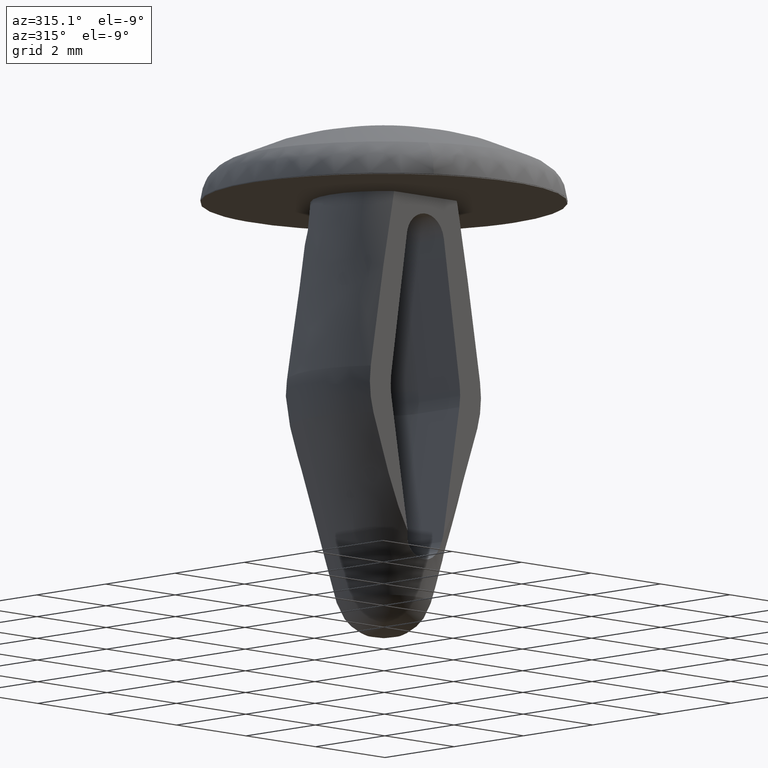
[diagram: clean part render]
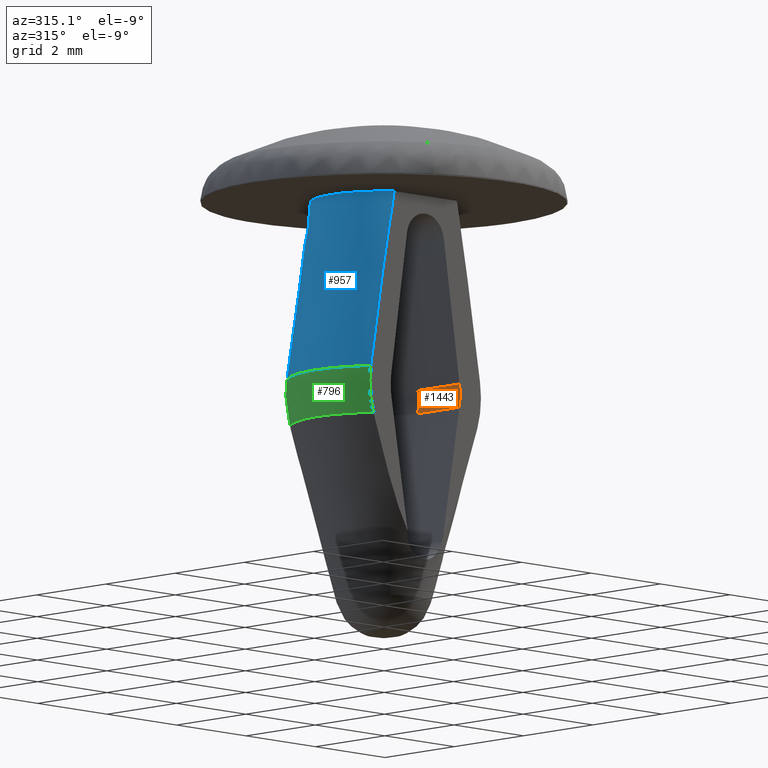
[diagram: same view with three faces highlighted in distinct colors, each labeled with its STEP entity id]
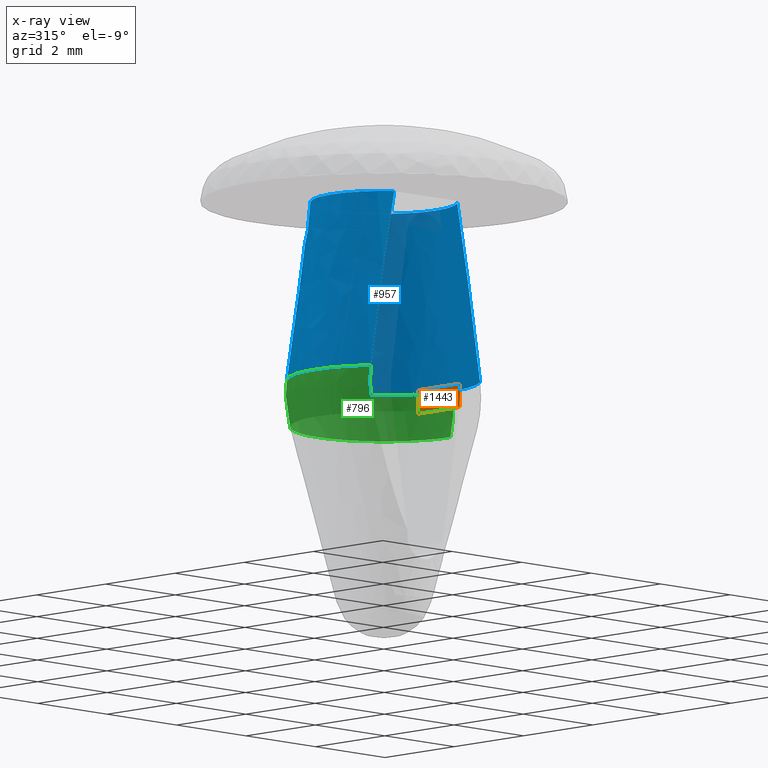
[diagram: x-ray of the same camera — body ghosted, the three highlighted faces saturated]
A machine part, auxiliary view with three faces highlighted in distinct colors.
The next image is the same camera in x-ray (body ghosted, the three faces saturated) — at least one of them is partly hidden behind the body in this view.
Their STEP definitions:

[orange] entity #1443 — the highlighted face is a freeform B-spline surface patch.
#1060=CARTESIAN_POINT('',(0.982791748525544,-1.199999999999986,-3.773420354298035));
#1061=VERTEX_POINT('',#1060);
#1067=CARTESIAN_POINT('',(0.978409000000000,-1.199999999999980,-4.253601000000000));
#1068=VERTEX_POINT('',#1067);
#1069=CARTESIAN_POINT('',(0.978409000000000,-1.199999999999980,-4.253601000000000));
#1070=CARTESIAN_POINT('',(1.019532730143233,-1.199999999999983,-4.013865942273591));
#1071=CARTESIAN_POINT('',(0.982791748525544,-1.199999999999986,-3.773420354298035));
#1079=(BOUNDED_CURVE()B_SPLINE_CURVE(2,(#1069,#1070,#1071),.UNSPECIFIED.,.F.,.U.)CURVE()GEOMETRIC_REPRESENTATION_ITEM()QUASI_UNIFORM_CURVE()RATIONAL_B_SPLINE_CURVE((1.0,0.987106218336658,1.0))REPRESENTATION_ITEM(''));
#1080=EDGE_CURVE('',#1068,#1061,#1079,.T.);
#1179=CARTESIAN_POINT('',(0.978407283496110,-2.168404E-016,-4.253597918180820));
#1180=VERTEX_POINT('',#1179);
#1256=CARTESIAN_POINT('',(0.982788363668221,0.0,-3.773422000000000));
#1257=VERTEX_POINT('',#1256);
#1287=CARTESIAN_POINT('',(0.978407283496112,0.0,-4.253597918180820));
#1288=CARTESIAN_POINT('',(1.019529730938965,0.0,-4.013865170172412));
#1289=CARTESIAN_POINT('',(0.982788363668221,0.0,-3.773422000000000));
#1297=(BOUNDED_CURVE()B_SPLINE_CURVE(2,(#1287,#1288,#1289),.UNSPECIFIED.,.F.,.U.)CURVE()GEOMETRIC_REPRESENTATION_ITEM()QUASI_UNIFORM_CURVE()RATIONAL_B_SPLINE_CURVE((1.0,0.987106424436386,1.0))REPRESENTATION_ITEM(''));
#1298=EDGE_CURVE('',#1180,#1257,#1297,.T.);
#1404=CARTESIAN_POINT('',(0.982788363668221,0.0,-3.773422000000000));
#1405=CARTESIAN_POINT('',(0.982791748525544,-1.199999999999986,-3.773420354298035));
#1406=QUASI_UNIFORM_CURVE('',1,(#1404,#1405),.UNSPECIFIED.,.F.,.U.);
#1407=EDGE_CURVE('',#1257,#1061,#1406,.T.);
#1419=CARTESIAN_POINT('',(0.978985775320890,0.030000000000000,-3.749797928868557));
#1420=CARTESIAN_POINT('',(0.978985775320890,-1.230749999999986,-3.749797928868557));
#1421=CARTESIAN_POINT('',(1.023672292751602,0.030000000000000,-4.013947315521438));
#1422=CARTESIAN_POINT('',(1.023672292751602,-1.230749999999986,-4.013947315521438));
#1423=CARTESIAN_POINT('',(0.974157753544693,0.030000000000000,-4.277234409235327));
#1424=CARTESIAN_POINT('',(0.974157753544693,-1.230749999999985,-4.277234409235327));
#1432=(BOUNDED_SURFACE()B_SPLINE_SURFACE(1,2,((#1419,#1421,#1423),(#1420,#1422,#1424)),.UNSPECIFIED.,.F.,.F.,.U.)B_SPLINE_SURFACE_WITH_KNOTS((2,2),(3,3),(0.0,1.0),(0.046906087555364,0.855996299527213),.UNSPECIFIED.)GEOMETRIC_REPRESENTATION_ITEM()RATIONAL_B_SPLINE_SURFACE(((0.997880583020988,0.980501107016413,0.994156177136356),(0.997880583020988,0.980501107016413,0.994156177136356)))REPRESENTATION_ITEM('')SURFACE());
#1433=CARTESIAN_POINT('',(0.978407283496110,-2.168404E-016,-4.253597918180820));
#1434=CARTESIAN_POINT('',(0.978409000000000,-1.199999999999980,-4.253601000000000));
#1435=QUASI_UNIFORM_CURVE('',1,(#1433,#1434),.UNSPECIFIED.,.F.,.U.);
#1436=EDGE_CURVE('',#1180,#1068,#1435,.T.);
#1437=ORIENTED_EDGE('',*,*,#1436,.T.);
#1438=ORIENTED_EDGE('',*,*,#1080,.T.);
#1439=ORIENTED_EDGE('',*,*,#1407,.F.);
#1440=ORIENTED_EDGE('',*,*,#1298,.F.);
#1441=EDGE_LOOP('',(#1437,#1438,#1439,#1440));
#1442=FACE_OUTER_BOUND('',#1441,.T.);
#1443=ADVANCED_FACE('',(#1442),#1432,.F.);

[blue] entity #957 — the highlighted face is a freeform B-spline surface patch.
#742=CARTESIAN_POINT('',(-1.573733587823400,-1.199999999999986,-3.677024810886955));
#743=VERTEX_POINT('',#742);
#744=CARTESIAN_POINT('',(1.979049621783978,9.594023E-011,-3.677024810964194));
#745=VERTEX_POINT('',#744);
#746=CARTESIAN_POINT('',(-1.573733587823400,-1.199999999999985,-3.677024810886955));
#747=CARTESIAN_POINT('',(-2.671100495634820,0.239135967490644,-3.677024810886955));
#748=CARTESIAN_POINT('',(-1.335550247817410,1.460459838885798,-3.677024810886955));
#749=CARTESIAN_POINT('',(4.336809E-016,2.681783710280953,-3.677024810886955));
#750=CARTESIAN_POINT('',(1.335550247817410,1.460459838885797,-3.677024810886955));
#751=CARTESIAN_POINT('',(1.979049621689369,0.871997407148744,-3.677024810886955));
#752=CARTESIAN_POINT('',(1.979049621783979,9.594023E-011,-3.677024810964194));
#760=(BOUNDED_CURVE()B_SPLINE_CURVE(2,(#746,#747,#748,#749,#750,#751,#752),.UNSPECIFIED.,.F.,.U.)B_SPLINE_CURVE_WITH_KNOTS((3,2,2,3),(0.0,0.333333333333333,0.666666666666667,0.852508629391287),.UNSPECIFIED.)CURVE()GEOMETRIC_REPRESENTATION_ITEM()RATIONAL_B_SPLINE_CURVE((1.0,0.737960192012123,1.0,0.737960192012123,1.0,0.853906023314651,0.870714394846003))REPRESENTATION_ITEM(''));
#761=EDGE_CURVE('',#743,#745,#760,.T.);
#820=CARTESIAN_POINT('',(1.573733587823400,-1.199999999999986,-3.677024810886955));
#821=VERTEX_POINT('',#820);
#822=CARTESIAN_POINT('',(1.979049621783979,9.594023E-011,-3.677024810964194));
#823=CARTESIAN_POINT('',(1.979049621838726,-0.668450452988905,-3.677024810886954));
#824=CARTESIAN_POINT('',(1.573733587823400,-1.199999999999986,-3.677024810886955));
#832=(BOUNDED_CURVE()B_SPLINE_CURVE(2,(#822,#823,#824),.UNSPECIFIED.,.F.,.U.)B_SPLINE_CURVE_WITH_KNOTS((3,3),(0.852508629391287,1.0),.UNSPECIFIED.)CURVE()GEOMETRIC_REPRESENTATION_ITEM()RATIONAL_B_SPLINE_CURVE((0.870714394846003,0.884054168697472,1.0))REPRESENTATION_ITEM(''));
#833=EDGE_CURVE('',#745,#821,#832,.T.);
#886=CARTESIAN_POINT('',(0.857189548919887,-1.216322648776343,0.091925620274105));
#887=CARTESIAN_POINT('',(1.147120936528419,-1.627725370360819,-3.771248571745152));
#888=CARTESIAN_POINT('',(2.231992210836445,-0.247446113584232,0.091925620274105));
#889=CARTESIAN_POINT('',(2.986929785185858,-0.331141015324710,-3.771248571745151));
#890=CARTESIAN_POINT('',(1.102791236696518,0.999032630582777,0.091925620274105));
#891=CARTESIAN_POINT('',(1.475793676939561,1.336940293148245,-3.771248571745152));
#892=CARTESIAN_POINT('',(-0.026409737443410,2.245511374749787,0.091925620274105));
#893=CARTESIAN_POINT('',(-0.035342431306737,3.005021601621200,-3.771248571745151));
#894=CARTESIAN_POINT('',(-1.125982436778197,0.972819747317463,0.091925620274105));
#895=CARTESIAN_POINT('',(-1.506828949348604,1.301861298965096,-3.771248571745152));
#896=CARTESIAN_POINT('',(-2.225555136112985,-0.299871880114860,0.091925620274105));
#897=CARTESIAN_POINT('',(-2.978315467390471,-0.401299003691009,-3.771248571745151));
#898=CARTESIAN_POINT('',(-0.828345756184745,-1.236146438297058,0.091925620274105));
#899=CARTESIAN_POINT('',(-1.108521167577597,-1.654254256567142,-3.771248571745152));
#907=(BOUNDED_SURFACE()B_SPLINE_SURFACE(1,2,((#886,#888,#890,#892,#894,#896,#898),(#887,#889,#891,#893,#895,#897,#899)),.UNSPECIFIED.,.F.,.F.,.U.)B_SPLINE_SURFACE_WITH_KNOTS((2,2),(3,2,2,3),(0.0,3.895821767834273),(0.0,3.588106502810695,7.176213005621390,10.764319508432081),.UNSPECIFIED.)GEOMETRIC_REPRESENTATION_ITEM()RATIONAL_B_SPLINE_SURFACE(((1.0,0.662620048215738,1.0,0.662620048215738,1.0,0.662620048215738,1.0),(1.0,0.662620048215738,1.0,0.662620048215738,1.0,0.662620048215738,1.0)))REPRESENTATION_ITEM('')SURFACE());
#908=CARTESIAN_POINT('',(0.900000000000019,-1.199999999999986,-7.347638E-017));
#909=VERTEX_POINT('',#908);
#910=CARTESIAN_POINT('',(1.573733587823400,-1.199999999999986,-3.677024810886955));
#911=CARTESIAN_POINT('',(1.489005990655326,-1.199999999999986,-3.159884669700296));
#912=CARTESIAN_POINT('',(1.401918301946416,-1.199999999999986,-2.643050464905263));
#913=CARTESIAN_POINT('',(1.219641813153173,-1.199999999999986,-1.611110511078921));
#914=CARTESIAN_POINT('',(1.124674992686648,-1.199999999999986,-1.095953280023142));
#915=CARTESIAN_POINT('',(0.982393489470487,-1.199999999999986,-0.388063193322614));
#916=CARTESIAN_POINT('',(0.942103891702534,-1.199999999999986,-0.193839023776181));
#917=CARTESIAN_POINT('',(0.900000000000019,-1.199999999999986,-7.347638E-017));
#918=B_SPLINE_CURVE_WITH_KNOTS('',3,(#910,#911,#912,#913,#914,#915,#916,#917),.UNSPECIFIED.,.F.,.U.,(4,2,2,4),(0.0,0.124999999999999,0.249999999999998,0.297349734715839),.UNSPECIFIED.);
#919=EDGE_CURVE('',#821,#909,#918,.T.);
#920=ORIENTED_EDGE('',*,*,#919,.F.);
#921=ORIENTED_EDGE('',*,*,#833,.F.);
#922=ORIENTED_EDGE('',*,*,#761,.F.);
#923=CARTESIAN_POINT('',(-0.900000000000019,-1.199999999999986,-7.347638E-017));
#924=VERTEX_POINT('',#923);
#925=CARTESIAN_POINT('',(-0.900000000000019,-1.199999999999986,-7.347638E-017));
#926=CARTESIAN_POINT('',(-0.942913641514915,-1.199999999999986,-0.197568220935154));
#927=CARTESIAN_POINT('',(-0.983957731683787,-1.199999999999986,-0.395590808369330));
#928=CARTESIAN_POINT('',(-1.126513073123144,-1.199999999999986,-1.105762847215027));
#929=CARTESIAN_POINT('',(-1.221117563328925,-1.199999999999985,-1.619266975762834));
#930=CARTESIAN_POINT('',(-1.402631399472268,-1.199999999999986,-2.647282073238782));
#931=CARTESIAN_POINT('',(-1.489346247982040,-1.199999999999986,-3.161960336343341));
#932=CARTESIAN_POINT('',(-1.573733587823400,-1.199999999999986,-3.677024810886955));
#933=B_SPLINE_CURVE_WITH_KNOTS('',3,(#925,#926,#927,#928,#929,#930,#931,#932),.UNSPECIFIED.,.F.,.U.,(4,2,2,4),(0.701567181361650,0.749999999999997,0.874999999999999,1.0),.UNSPECIFIED.);
#934=EDGE_CURVE('',#924,#743,#933,.T.);
#935=ORIENTED_EDGE('',*,*,#934,.F.);
#936=CARTESIAN_POINT('',(-0.900000000000019,-1.199999999999986,0.0));
#937=CARTESIAN_POINT('',(-1.764911064067354,-0.551316701949464,0.0));
#938=CARTESIAN_POINT('',(-1.423024947075767,0.474341649025268,0.0));
#939=CARTESIAN_POINT('',(-1.081138830084181,1.500000000000001,0.0));
#940=CARTESIAN_POINT('',(0.0,1.500000000000000,0.0));
#941=CARTESIAN_POINT('',(1.081138830084179,1.500000000000001,0.0));
#942=CARTESIAN_POINT('',(1.423024947075766,0.474341649025270,0.0));
#943=CARTESIAN_POINT('',(1.764911064067355,-0.551316701949462,0.0));
#944=CARTESIAN_POINT('',(0.900000000000020,-1.199999999999985,0.0));
#952=(BOUNDED_CURVE()B_SPLINE_CURVE(2,(#936,#937,#938,#939,#940,#941,#942,#943,#944),.UNSPECIFIED.,.F.,.U.)B_SPLINE_CURVE_WITH_KNOTS((3,2,2,2,3),(0.0,0.250000000000000,0.500000000000000,0.750000000000000,1.0),.UNSPECIFIED.)CURVE()GEOMETRIC_REPRESENTATION_ITEM()RATIONAL_B_SPLINE_CURVE((1.0,0.811242185175563,1.0,0.811242185175563,1.0,0.811242185175563,1.0,0.811242185175563,1.0))REPRESENTATION_ITEM(''));
#953=EDGE_CURVE('',#924,#909,#952,.T.);
#954=ORIENTED_EDGE('',*,*,#953,.T.);
#955=EDGE_LOOP('',(#920,#921,#922,#935,#954));
#956=FACE_OUTER_BOUND('',#955,.T.);
#957=ADVANCED_FACE('',(#956),#907,.T.);

[green] entity #796 — the highlighted face is a freeform B-spline surface patch.
#286=CARTESIAN_POINT('',(-1.496163553573590,-1.199999999999986,-4.635257124094320));
#287=VERTEX_POINT('',#286);
#288=CARTESIAN_POINT('',(-1.853130891334652,0.494377845045473,-4.635258875572371));
#289=VERTEX_POINT('',#288);
#290=CARTESIAN_POINT('',(-1.496163553573590,-1.199999999999986,-4.635257124094320));
#291=CARTESIAN_POINT('',(-2.103232487399047,-0.443104465872611,-4.635258116353674));
#292=CARTESIAN_POINT('',(-1.853130891334651,0.494377845045473,-4.635258875572371));
#300=(BOUNDED_CURVE()B_SPLINE_CURVE(2,(#290,#291,#292),.UNSPECIFIED.,.F.,.U.)B_SPLINE_CURVE_WITH_KNOTS((3,3),(0.0,0.206598656610425),.UNSPECIFIED.)CURVE()GEOMETRIC_REPRESENTATION_ITEM()RATIONAL_B_SPLINE_CURVE((1.0,0.834154077139532,0.873889423482797))REPRESENTATION_ITEM(''));
#301=EDGE_CURVE('',#287,#289,#300,.T.);
#359=CARTESIAN_POINT('',(-0.192220907132986,1.908285629261297,-4.635259230446605));
#360=VERTEX_POINT('',#359);
#366=CARTESIAN_POINT('',(1.917943262344400,-0.000000111524127,-4.635256153124296));
#367=VERTEX_POINT('',#366);
#368=CARTESIAN_POINT('',(-0.192220907132986,1.908285629261297,-4.635259230446605));
#369=CARTESIAN_POINT('',(0.670655794026616,1.995203075432844,-4.635258449610775));
#370=CARTESIAN_POINT('',(1.305840773213348,1.404736673732055,-4.635257514462345));
#371=CARTESIAN_POINT('',(1.917943342818645,0.835727623471763,-4.635256613296896));
#372=CARTESIAN_POINT('',(1.917943262344400,-0.000000111524127,-4.635256153124296));
#380=(BOUNDED_CURVE()B_SPLINE_CURVE(2,(#368,#369,#370,#371,#372),.UNSPECIFIED.,.F.,.U.)B_SPLINE_CURVE_WITH_KNOTS((3,2,3),(0.478695209469498,0.666666666666667,0.848806047577946),.UNSPECIFIED.)CURVE()GEOMETRIC_REPRESENTATION_ITEM()RATIONAL_B_SPLINE_CURVE((0.868395425824294,0.849106957897236,1.0,0.853788624708119,0.867362345683337))REPRESENTATION_ITEM(''));
#381=EDGE_CURVE('',#360,#367,#380,.T.);
#510=CARTESIAN_POINT('',(-1.853130891334651,0.494377845045473,-4.635258875572371));
#511=CARTESIAN_POINT('',(-1.710660088919092,1.028416951093763,-4.635258979820431));
#512=CARTESIAN_POINT('',(-1.305840153261273,1.404736627963445,-4.635259071984208));
#513=CARTESIAN_POINT('',(-0.833660527748491,1.843673716890839,-4.635259179483501));
#514=CARTESIAN_POINT('',(-0.192220907132986,1.908285629261297,-4.635259230446605));
#522=(BOUNDED_CURVE()B_SPLINE_CURVE(2,(#510,#511,#512,#513,#514),.UNSPECIFIED.,.F.,.U.)B_SPLINE_CURVE_WITH_KNOTS((3,2,3),(0.206598656610425,0.333333333333333,0.478695209469498),.UNSPECIFIED.)CURVE()GEOMETRIC_REPRESENTATION_ITEM()RATIONAL_B_SPLINE_CURVE((0.873889423482797,0.898264442933105,1.0,0.883311562175401,0.868395425824294))REPRESENTATION_ITEM(''));
#523=EDGE_CURVE('',#289,#360,#522,.T.);
#699=CARTESIAN_POINT('',(-1.217595698680286,-1.464649086310717,-4.683814344699183));
#700=CARTESIAN_POINT('',(-1.278542737497976,-1.537962440500802,-4.348553266800303));
#701=CARTESIAN_POINT('',(-1.278542737497976,-1.537962440500801,-4.0));
#702=CARTESIAN_POINT('',(-1.278542737497976,-1.537962440500802,-3.813320396815827));
#703=CARTESIAN_POINT('',(-1.260819048134568,-1.516642567688911,-3.628711057659776));
#704=CARTESIAN_POINT('',(-1.904661710508076,-0.893475671101647,-4.683814344699183));
#705=CARTESIAN_POINT('',(-2.0,-0.938198805774605,-4.348553266800303));
#706=CARTESIAN_POINT('',(-2.0,-0.938198805774605,-4.0));
#707=CARTESIAN_POINT('',(-2.000000000000000,-0.938198805774605,-3.813320396815827));
#708=CARTESIAN_POINT('',(-1.972275171030902,-0.925193105060048,-3.628711057659775));
#709=CARTESIAN_POINT('',(-1.904661710508077,0.0,-4.683814344699182));
#710=CARTESIAN_POINT('',(-2.000000000000000,0.0,-4.348553266800304));
#711=CARTESIAN_POINT('',(-2.0,0.0,-4.0));
#712=CARTESIAN_POINT('',(-2.000000000000000,0.0,-3.813320396815828));
#713=CARTESIAN_POINT('',(-1.972275171030903,0.0,-3.628711057659776));
#714=CARTESIAN_POINT('',(-1.904661710508076,1.904661710508076,-4.683814344699183));
#715=CARTESIAN_POINT('',(-2.0,2.0,-4.348553266800304));
#716=CARTESIAN_POINT('',(-2.000000000000000,2.000000000000000,-4.000000000000000));
#717=CARTESIAN_POINT('',(-2.0,2.0,-3.813320396815827));
#718=CARTESIAN_POINT('',(-1.972275171030902,1.972275171030902,-3.628711057659774));
#719=CARTESIAN_POINT('',(0.0,1.904661710508077,-4.683814344699182));
#720=CARTESIAN_POINT('',(0.0,2.000000000000000,-4.348553266800304));
#721=CARTESIAN_POINT('',(0.0,2.0,-4.0));
#722=CARTESIAN_POINT('',(0.0,2.000000000000000,-3.813320396815828));
#723=CARTESIAN_POINT('',(0.0,1.972275171030903,-3.628711057659776));
#724=CARTESIAN_POINT('',(1.904661710508076,1.904661710508076,-4.683814344699183));
#725=CARTESIAN_POINT('',(2.0,2.0,-4.348553266800304));
#726=CARTESIAN_POINT('',(2.000000000000000,2.000000000000000,-4.000000000000000));
#727=CARTESIAN_POINT('',(2.0,2.0,-3.813320396815827));
#728=CARTESIAN_POINT('',(1.972275171030902,1.972275171030902,-3.628711057659774));
#729=CARTESIAN_POINT('',(1.904661710508077,0.0,-4.683814344699182));
#730=CARTESIAN_POINT('',(2.000000000000000,0.0,-4.348553266800304));
#731=CARTESIAN_POINT('',(2.0,0.0,-4.0));
#732=CARTESIAN_POINT('',(2.000000000000000,0.0,-3.813320396815828));
#733=CARTESIAN_POINT('',(1.972275171030903,0.0,-3.628711057659776));
#741=(BOUNDED_SURFACE()B_SPLINE_SURFACE(2,2,((#699,#704,#709,#714,#719,#724,#729),(#700,#705,#710,#715,#720,#725,#730),(#701,#706,#711,#716,#721,#726,#731),(#702,#707,#712,#717,#722,#727,#732),(#703,#708,#713,#718,#723,#728,#733)),.UNSPECIFIED.,.F.,.F.,.U.)B_SPLINE_SURFACE_WITH_KNOTS((3,2,3),(3,2,2,3),(0.0,0.717792335106192,1.110871975596446),(0.0,1.840679095630342,5.154387594615102,8.468096093599861),.UNSPECIFIED.)GEOMETRIC_REPRESENTATION_ITEM()RATIONAL_B_SPLINE_SURFACE(((0.791382915217775,0.774682290090880,0.925208741177413,0.654221374899618,0.925208741177413,0.654221374899618,0.925208741177413),(0.814866255439175,0.797670059262888,0.952663202509705,0.673634610681506,0.952663202509705,0.673634610681506,0.952663202509705),(0.855356072631423,0.837305416186433,1.0,0.707106781186548,1.0,0.707106781186548,1.0),(0.833182914731805,0.815600180440352,0.974077277745391,0.688776648493498,0.974077277745391,0.688776648493498,0.974077277745391),(0.816109846629487,0.798887406836007,0.954117089645253,0.674662664134131,0.954117089645253,0.674662664134131,0.954117089645253)))REPRESENTATION_ITEM('')SURFACE());
#742=CARTESIAN_POINT('',(-1.573733587823400,-1.199999999999986,-3.677024810886955));
#743=VERTEX_POINT('',#742);
#744=CARTESIAN_POINT('',(1.979049621783978,9.594023E-011,-3.677024810964194));
#745=VERTEX_POINT('',#744);
#746=CARTESIAN_POINT('',(-1.573733587823400,-1.199999999999985,-3.677024810886955));
#747=CARTESIAN_POINT('',(-2.671100495634820,0.239135967490644,-3.677024810886955));
#748=CARTESIAN_POINT('',(-1.335550247817410,1.460459838885798,-3.677024810886955));
#749=CARTESIAN_POINT('',(4.336809E-016,2.681783710280953,-3.677024810886955));
#750=CARTESIAN_POINT('',(1.335550247817410,1.460459838885797,-3.677024810886955));
#751=CARTESIAN_POINT('',(1.979049621689369,0.871997407148744,-3.677024810886955));
#752=CARTESIAN_POINT('',(1.979049621783979,9.594023E-011,-3.677024810964194));
#760=(BOUNDED_CURVE()B_SPLINE_CURVE(2,(#746,#747,#748,#749,#750,#751,#752),.UNSPECIFIED.,.F.,.U.)B_SPLINE_CURVE_WITH_KNOTS((3,2,2,3),(0.0,0.333333333333333,0.666666666666667,0.852508629391287),.UNSPECIFIED.)CURVE()GEOMETRIC_REPRESENTATION_ITEM()RATIONAL_B_SPLINE_CURVE((1.0,0.737960192012123,1.0,0.737960192012123,1.0,0.853906023314651,0.870714394846003))REPRESENTATION_ITEM(''));
#761=EDGE_CURVE('',#743,#745,#760,.T.);
#762=ORIENTED_EDGE('',*,*,#761,.T.);
#763=CARTESIAN_POINT('',(1.917943262344401,-0.000000111524127,-4.635256153124296));
#764=CARTESIAN_POINT('',(2.000000000000000,0.0,-4.322927756196548));
#765=CARTESIAN_POINT('',(2.0,0.0,-4.0));
#766=CARTESIAN_POINT('',(2.0,0.0,-3.837832913160346));
#767=CARTESIAN_POINT('',(1.979049621783979,9.594023E-011,-3.677024810964194));
#775=(BOUNDED_CURVE()B_SPLINE_CURVE(2,(#763,#764,#765,#766,#767),.UNSPECIFIED.,.F.,.U.)B_SPLINE_CURVE_WITH_KNOTS((3,2,3),(0.402375499125276,0.500000000000000,0.550122985006216),.UNSPECIFIED.)CURVE()GEOMETRIC_REPRESENTATION_ITEM()RATIONAL_B_SPLINE_CURVE((0.929166178754318,0.955990224678399,1.0,0.977404224464079,0.959338719801722))REPRESENTATION_ITEM(''));
#776=EDGE_CURVE('',#367,#745,#775,.T.);
#777=ORIENTED_EDGE('',*,*,#776,.F.);
#778=ORIENTED_EDGE('',*,*,#381,.F.);
#779=ORIENTED_EDGE('',*,*,#523,.F.);
#780=ORIENTED_EDGE('',*,*,#301,.F.);
#781=CARTESIAN_POINT('',(-1.496163553573590,-1.199999999999986,-4.635257124094320));
#782=CARTESIAN_POINT('',(-1.540742512590890,-1.199999999999986,-4.502882902459283));
#783=CARTESIAN_POINT('',(-1.570734711063752,-1.199999999999986,-4.367845915096151));
#784=CARTESIAN_POINT('',(-1.594664026476880,-1.199999999999986,-4.161446185278321));
#785=CARTESIAN_POINT('',(-1.599099395698607,-1.199999999999986,-4.091844386168440));
#786=CARTESIAN_POINT('',(-1.600627423754165,-1.199999999999986,-3.951959332168730));
#787=CARTESIAN_POINT('',(-1.597727101306798,-1.199999999999986,-3.882569205044828));
#788=CARTESIAN_POINT('',(-1.586993671774362,-1.199999999999986,-3.767915230538668));
#789=CARTESIAN_POINT('',(-1.581151906507882,-1.199999999999986,-3.722351187751040));
#790=CARTESIAN_POINT('',(-1.573733587823400,-1.199999999999986,-3.677024810886955));
#791=B_SPLINE_CURVE_WITH_KNOTS('',3,(#781,#782,#783,#784,#785,#786,#787,#788,#789,#790),.UNSPECIFIED.,.F.,.U.,(4,2,2,2,4),(0.0,0.062500000000000,0.093750000000000,0.125000000000000,0.145785502405452),.UNSPECIFIED.);
#792=EDGE_CURVE('',#287,#743,#791,.T.);
#793=ORIENTED_EDGE('',*,*,#792,.T.);
#794=EDGE_LOOP('',(#762,#777,#778,#779,#780,#793));
#795=FACE_OUTER_BOUND('',#794,.T.);
#796=ADVANCED_FACE('',(#795),#741,.T.);